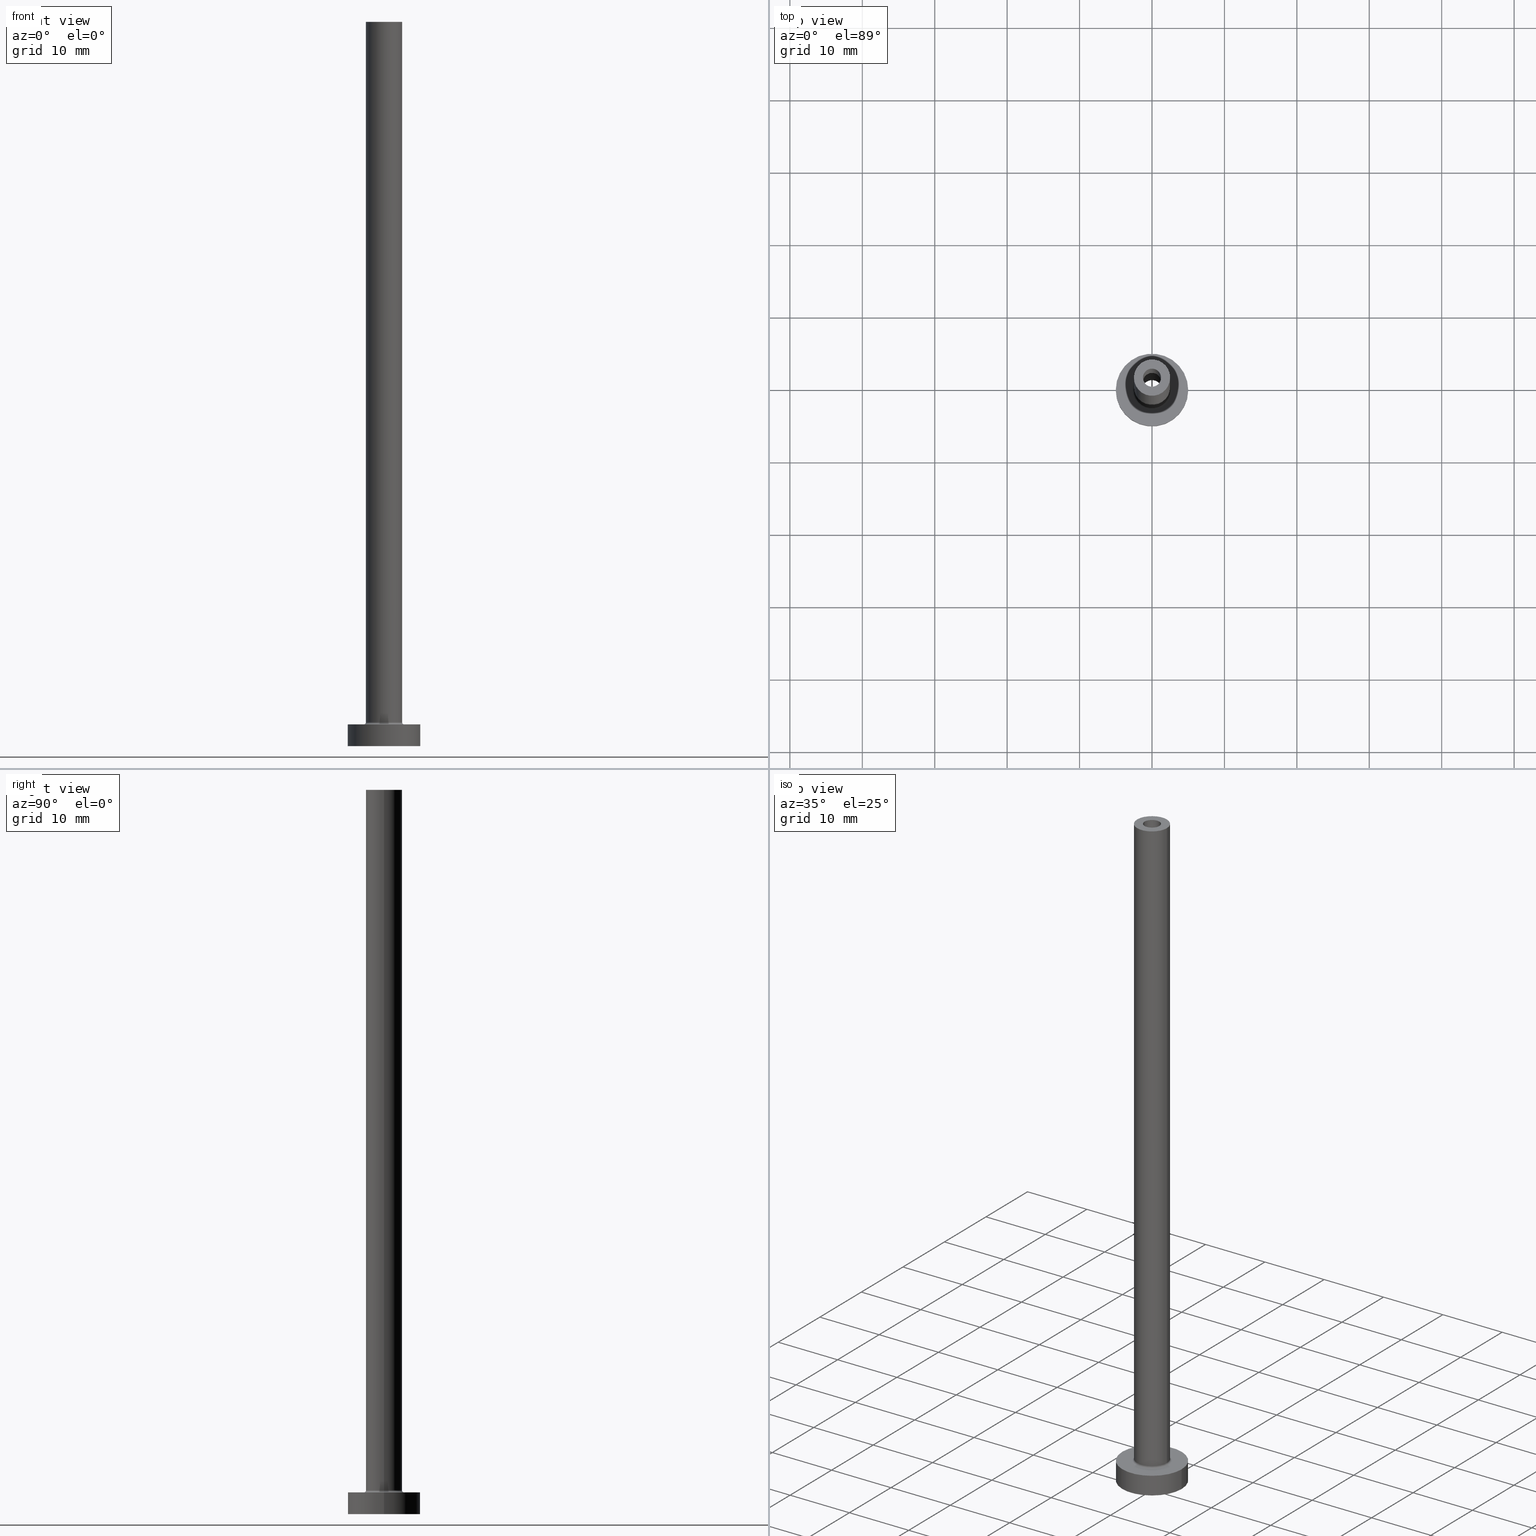
[diagram: canonical four-view strip — front | top / right | iso, engineering-drawing reading convention]
A machine part, canonical four-view strip (front | top / right | iso — engineering-drawing reading convention). The complete STEP part file that produces these views, byte-faithful:
ISO-10303-21;
HEADER;
FILE_DESCRIPTION (( 'STEP AP203' ),
    '1' );
FILE_NAME ('d042.STEP',
    '2023-02-13T12:49:09',
    ( '' ),
    ( '' ),
    'SwSTEP 2.0',
    'SolidWorks 2019',
    '' );
FILE_SCHEMA (( 'CONFIG_CONTROL_DESIGN' ));
ENDSEC;

DATA;
#1 = DIRECTION ( 'NONE',  ( 0.000000000000000000, 0.000000000000000000, 1.000000000000000000 ) ) ;
#2 = CARTESIAN_POINT ( 'NONE',  ( 0.000000000000000000, 0.000000000000000000, 100.0000000000000000 ) ) ;
#3 = AXIS2_PLACEMENT_3D ( 'NONE', #423, #246, #111 ) ;
#4 = DIRECTION ( 'NONE',  ( 0.000000000000000000, 0.000000000000000000, -1.000000000000000000 ) ) ;
#5 = FACE_OUTER_BOUND ( 'NONE', #127, .T. ) ;
#6 = CARTESIAN_POINT ( 'NONE',  ( 5.000000000000000000, 6.123233995736766282E-16, 0.000000000000000000 ) ) ;
#7 = VERTEX_POINT ( 'NONE', #173 ) ;
#8 = CARTESIAN_POINT ( 'NONE',  ( -2.799999999999999822, 3.429011037612588783E-16, 3.299999999999997158 ) ) ;
#9 = ORIENTED_EDGE ( 'NONE', *, *, #193, .F. ) ;
#10 = LINE ( 'NONE', #124, #236 ) ;
#11 = ORIENTED_EDGE ( 'NONE', *, *, #209, .T. ) ;
#12 = CARTESIAN_POINT ( 'NONE',  ( 0.000000000000000000, 0.000000000000000000, 100.0000000000000000 ) ) ;
#13 = ORIENTED_EDGE ( 'NONE', *, *, #340, .T. ) ;
#14 = APPROVAL_DATE_TIME ( #343, #264 ) ;
#15 = VERTEX_POINT ( 'NONE', #344 ) ;
#16 = AXIS2_PLACEMENT_3D ( 'NONE', #95, #144, #136 ) ;
#17 = CIRCLE ( 'NONE', #331, 2.799999999999999822 ) ;
#18 = DIRECTION ( 'NONE',  ( 0.000000000000000000, 0.000000000000000000, 1.000000000000000000 ) ) ;
#19 = PERSON_AND_ORGANIZATION_ROLE ( 'creator' ) ;
#20 = EDGE_CURVE ( 'NONE', #444, #78, #166, .T. ) ;
#21 = LINE ( 'NONE', #350, #221 ) ;
#22 = PERSON ( 'NEUR�EN�', 'NEUR�EN�', 'NEUR�EN�', ('NEUR�EN�'), ('NEUR�EN�'), ('NEUR�EN�') ) ;
#23 = MECHANICAL_CONTEXT ( 'NONE', #321, 'mechanical' ) ;
#24 = DIRECTION ( 'NONE',  ( -1.000000000000000000, 0.000000000000000000, 0.000000000000000000 ) ) ;
#25 = SECURITY_CLASSIFICATION_LEVEL ( 'unclassified' ) ;
#26 = VERTEX_POINT ( 'NONE', #64 ) ;
#27 = ADVANCED_FACE ( 'NONE', ( #210 ), #447, .F. ) ;
#28 = MANIFOLD_SOLID_BREP ( 'Odebrat vysunut�m4', #139 ) ;
#29 = DIRECTION ( 'NONE',  ( 1.000000000000000000, 0.000000000000000000, 0.000000000000000000 ) ) ;
#30 = DIRECTION ( 'NONE',  ( 1.000000000000000000, 0.000000000000000000, 0.000000000000000000 ) ) ;
#31 = AXIS2_PLACEMENT_3D ( 'NONE', #455, #383, #242 ) ;
#32 = AXIS2_PLACEMENT_3D ( 'NONE', #457, #247, #215 ) ;
#33 = DIRECTION ( 'NONE',  ( 0.000000000000000000, 0.000000000000000000, -1.000000000000000000 ) ) ;
#34 = AXIS2_PLACEMENT_3D ( 'NONE', #81, #413, #169 ) ;
#35 = CC_DESIGN_APPROVAL ( #264, ( #74 ) ) ;
#36 = DIRECTION ( 'NONE',  ( 0.000000000000000000, 0.000000000000000000, 1.000000000000000000 ) ) ;
#37 = EDGE_CURVE ( 'NONE', #26, #366, #21, .T. ) ;
#38 = CARTESIAN_POINT ( 'NONE',  ( 0.000000000000000000, 0.000000000000000000, 100.0000000000000000 ) ) ;
#39 = AXIS2_PLACEMENT_3D ( 'NONE', #416, #347, #29 ) ;
#40 = AXIS2_PLACEMENT_3D ( 'NONE', #38, #188, #77 ) ;
#41 = FACE_OUTER_BOUND ( 'NONE', #411, .T. ) ;
#42 = TOROIDAL_SURFACE ( 'NONE', #34, 2.799999999999999822, 0.2999999999999999889 ) ;
#43 = CC_DESIGN_PERSON_AND_ORGANIZATION_ASSIGNMENT ( #374, #19, ( #74 ) ) ;
#44 = DIRECTION ( 'NONE',  ( 0.000000000000000000, 0.000000000000000000, 1.000000000000000000 ) ) ;
#45 = ORIENTED_EDGE ( 'NONE', *, *, #79, .T. ) ;
#46 = CARTESIAN_POINT ( 'NONE',  ( 0.000000000000000000, 0.000000000000000000, 0.000000000000000000 ) ) ;
#47 = VERTEX_POINT ( 'NONE', #108 ) ;
#48 = LINE ( 'NONE', #84, #279 ) ;
#49 = CIRCLE ( 'NONE', #39, 5.000000000000000000 ) ;
#50 = AXIS2_PLACEMENT_3D ( 'NONE', #220, #359, #109 ) ;
#51 = ORIENTED_EDGE ( 'NONE', *, *, #424, .T. ) ;
#52 = DIRECTION ( 'NONE',  ( 1.000000000000000000, 0.000000000000000000, 0.000000000000000000 ) ) ;
#53 = ORIENTED_EDGE ( 'NONE', *, *, #193, .T. ) ;
#54 = EDGE_CURVE ( 'NONE', #440, #26, #49, .T. ) ;
#55 = CALENDAR_DATE ( 2023, 13, 2 ) ;
#56 = EDGE_LOOP ( 'NONE', ( #11, #197 ) ) ;
#57 = APPLICATION_PROTOCOL_DEFINITION ( 'international standard', 'config_control_design', 1994, #360 ) ;
#58 = FACE_OUTER_BOUND ( 'NONE', #267, .T. ) ;
#59 = AXIS2_PLACEMENT_3D ( 'NONE', #196, #332, #329 ) ;
#60 = EDGE_CURVE ( 'NONE', #369, #226, #324, .T. ) ;
#61 = PERSON_AND_ORGANIZATION_ROLE ( 'design_owner' ) ;
#62 = AXIS2_PLACEMENT_3D ( 'NONE', #443, #161, #52 ) ;
#63 = EDGE_LOOP ( 'NONE', ( #87, #400 ) ) ;
#64 = CARTESIAN_POINT ( 'NONE',  ( 5.000000000000000000, 6.123233995736766282E-16, 3.000000000000000000 ) ) ;
#65 = APPROVAL_ROLE ( '' ) ;
#66 = CARTESIAN_POINT ( 'NONE',  ( 0.000000000000000000, 0.000000000000000000, 100.0000000000000000 ) ) ;
#67 = CC_DESIGN_PERSON_AND_ORGANIZATION_ASSIGNMENT ( #137, #271, ( #185 ) ) ;
#68 = DATE_AND_TIME ( #135, #123 ) ;
#69 = DIRECTION ( 'NONE',  ( -0.000000000000000000, -0.000000000000000000, -1.000000000000000000 ) ) ;
#70 = PLANE ( 'NONE',  #354 ) ;
#71 = FACE_OUTER_BOUND ( 'NONE', #266, .T. ) ;
#72 = AXIS2_PLACEMENT_3D ( 'NONE', #234, #240, #420 ) ;
#73 = APPROVAL_DATE_TIME ( #68, #362 ) ;
#74 = PRODUCT_DEFINITION ( 'NEZN�M�', '', #185, #402 ) ;
#75 = DIRECTION ( 'NONE',  ( 0.000000000000000000, -1.000000000000000000, 0.000000000000000000 ) ) ;
#76 = CARTESIAN_POINT ( 'NONE',  ( -2.799999999999999822, 3.429011037612589276E-16, 2.999999999999998668 ) ) ;
#77 = DIRECTION ( 'NONE',  ( 1.000000000000000000, 0.000000000000000000, 0.000000000000000000 ) ) ;
#78 = VERTEX_POINT ( 'NONE', #134 ) ;
#79 = EDGE_CURVE ( 'NONE', #440, #406, #105, .T. ) ;
#80 = AXIS2_PLACEMENT_3D ( 'NONE', #204, #451, #103 ) ;
#81 = CARTESIAN_POINT ( 'NONE',  ( 0.000000000000000000, 0.000000000000000000, 3.299999999999997158 ) ) ;
#82 = ORIENTED_EDGE ( 'NONE', *, *, #388, .T. ) ;
#83 = CIRCLE ( 'NONE', #205, 0.2999999999999999334 ) ;
#84 = CARTESIAN_POINT ( 'NONE',  ( -2.500000000000000000, 0.000000000000000000, 100.0000000000000000 ) ) ;
#85 = ORIENTED_EDGE ( 'NONE', *, *, #37, .T. ) ;
#86 = CARTESIAN_POINT ( 'NONE',  ( 0.000000000000000000, 0.000000000000000000, 3.000000000000000000 ) ) ;
#87 = ORIENTED_EDGE ( 'NONE', *, *, #282, .F. ) ;
#88 = ADVANCED_BREP_SHAPE_REPRESENTATION ( 'd042', ( #28, #386 ), #295 ) ;
#89 = EDGE_CURVE ( 'NONE', #263, #131, #291, .T. ) ;
#90 = DIRECTION ( 'NONE',  ( 0.000000000000000000, 0.000000000000000000, 1.000000000000000000 ) ) ;
#91 = ORIENTED_EDGE ( 'NONE', *, *, #287, .F. ) ;
#92 = DIRECTION ( 'NONE',  ( -1.000000000000000000, 1.224646799147353207E-16, 0.000000000000000000 ) ) ;
#93 = VERTEX_POINT ( 'NONE', #376 ) ;
#94 =( NAMED_UNIT ( * ) PLANE_ANGLE_UNIT ( ) SI_UNIT ( $, .RADIAN. ) );
#95 = CARTESIAN_POINT ( 'NONE',  ( 0.000000000000000000, 0.000000000000000000, 3.000000000000000000 ) ) ;
#96 = ADVANCED_FACE ( 'NONE', ( #381 ), #379, .T. ) ;
#97 = DIRECTION ( 'NONE',  ( -1.000000000000000000, 0.000000000000000000, 0.000000000000000000 ) ) ;
#98 = CIRCLE ( 'NONE', #339, 1.399999999999999911 ) ;
#99 = AXIS2_PLACEMENT_3D ( 'NONE', #217, #251, #30 ) ;
#100 = CC_DESIGN_PERSON_AND_ORGANIZATION_ASSIGNMENT ( #415, #177, ( #286 ) ) ;
#101 = CALENDAR_DATE ( 2023, 13, 2 ) ;
#102 = ORGANIZATION ( 'NEUR�EN�', 'NEUR�EN�', '' ) ;
#103 = DIRECTION ( 'NONE',  ( -1.000000000000000000, 0.000000000000000000, 0.000000000000000000 ) ) ;
#104 = COORDINATED_UNIVERSAL_TIME_OFFSET ( 1, 0, .AHEAD. ) ;
#105 = LINE ( 'NONE', #308, #346 ) ;
#106 = PERSON_AND_ORGANIZATION ( #22, #102 ) ;
#107 = ADVANCED_FACE ( 'NONE', ( #58 ), #303, .F. ) ;
#108 = CARTESIAN_POINT ( 'NONE',  ( 2.500000000000000000, 3.061616997868382648E-16, 3.299999999999997158 ) ) ;
#109 = DIRECTION ( 'NONE',  ( 1.000000000000000000, 0.000000000000000000, 0.000000000000000000 ) ) ;
#110 = VERTEX_POINT ( 'NONE', #213 ) ;
#111 = DIRECTION ( 'NONE',  ( 1.000000000000000000, 0.000000000000000000, 0.000000000000000000 ) ) ;
#112 = ORIENTED_EDGE ( 'NONE', *, *, #142, .F. ) ;
#113 = EDGE_CURVE ( 'NONE', #7, #93, #98, .T. ) ;
#114 = DIRECTION ( 'NONE',  ( 0.000000000000000000, 0.000000000000000000, 1.000000000000000000 ) ) ;
#115 = CIRCLE ( 'NONE', #370, 0.2999999999999999334 ) ;
#116 = DIRECTION ( 'NONE',  ( 1.000000000000000000, 0.000000000000000000, 0.000000000000000000 ) ) ;
#117 = ADVANCED_FACE ( 'NONE', ( #306 ), #449, .T. ) ;
#118 = CARTESIAN_POINT ( 'NONE',  ( 0.000000000000000000, 0.000000000000000000, 100.0000000000000000 ) ) ;
#119 = ORIENTED_EDGE ( 'NONE', *, *, #395, .T. ) ;
#120 = CARTESIAN_POINT ( 'NONE',  ( 2.500000000000000000, 3.061616997868382648E-16, 100.0000000000000000 ) ) ;
#121 = VERTEX_POINT ( 'NONE', #357 ) ;
#122 = AXIS2_PLACEMENT_3D ( 'NONE', #405, #90, #299 ) ;
#123 = LOCAL_TIME ( 13, 49, 9.000000000000000000, #341 ) ;
#124 = CARTESIAN_POINT ( 'NONE',  ( -1.399999999999999911, 0.000000000000000000, 68.95979797464465832 ) ) ;
#125 = EDGE_LOOP ( 'NONE', ( #208, #182, #273, #168 ) ) ;
#126 = DIRECTION ( 'NONE',  ( 0.000000000000000000, 0.000000000000000000, 1.000000000000000000 ) ) ;
#127 = EDGE_LOOP ( 'NONE', ( #328, #53 ) ) ;
#128 = UNCERTAINTY_MEASURE_WITH_UNIT (LENGTH_MEASURE( 1.000000000000000082E-05 ), #452, 'distance_accuracy_value', 'NONE');
#129 = DIRECTION ( 'NONE',  ( 1.000000000000000000, 0.000000000000000000, 0.000000000000000000 ) ) ;
#130 = AXIS2_PLACEMENT_3D ( 'NONE', #432, #248, #316 ) ;
#131 = VERTEX_POINT ( 'NONE', #459 ) ;
#132 = APPROVAL_ROLE ( '' ) ;
#133 = ADVANCED_FACE ( 'NONE', ( #323 ), #153, .F. ) ;
#134 = CARTESIAN_POINT ( 'NONE',  ( -1.250000000000000000, 0.000000000000000000, 65.00000000000000000 ) ) ;
#135 = CALENDAR_DATE ( 2023, 13, 2 ) ;
#136 = DIRECTION ( 'NONE',  ( 1.000000000000000000, 0.000000000000000000, 0.000000000000000000 ) ) ;
#137 = PERSON_AND_ORGANIZATION ( #22, #102 ) ;
#138 = ORIENTED_EDGE ( 'NONE', *, *, #410, .F. ) ;
#139 = CLOSED_SHELL ( 'NONE', ( #107, #27, #456, #401, #96, #117, #320, #348, #214, #147, #249, #334, #305, #133 ) ) ;
#140 = AXIS2_PLACEMENT_3D ( 'NONE', #351, #114, #116 ) ;
#141 = ORIENTED_EDGE ( 'NONE', *, *, #358, .T. ) ;
#142 = EDGE_CURVE ( 'NONE', #47, #131, #115, .T. ) ;
#143 = COORDINATED_UNIVERSAL_TIME_OFFSET ( 1, 0, .AHEAD. ) ;
#144 = DIRECTION ( 'NONE',  ( -0.000000000000000000, -0.000000000000000000, -1.000000000000000000 ) ) ;
#145 = CARTESIAN_POINT ( 'NONE',  ( 0.000000000000000000, 0.000000000000000000, 100.0000000000000000 ) ) ;
#146 = CYLINDRICAL_SURFACE ( 'NONE', #458, 2.500000000000000000 ) ;
#147 = ADVANCED_FACE ( 'NONE', ( #218, #389 ), #70, .T. ) ;
#148 = APPROVAL_PERSON_ORGANIZATION ( #382, #176, #65 ) ;
#149 = ORIENTED_EDGE ( 'NONE', *, *, #238, .F. ) ;
#150 = DIRECTION ( 'NONE',  ( 1.000000000000000000, 0.000000000000000000, -0.000000000000000000 ) ) ;
#151 = PRODUCT_RELATED_PRODUCT_CATEGORY ( 'detail', '', ( #186 ) ) ;
#152 = DIRECTION ( 'NONE',  ( -0.000000000000000000, -0.000000000000000000, -1.000000000000000000 ) ) ;
#153 = CYLINDRICAL_SURFACE ( 'NONE', #309, 1.250000000000000000 ) ;
#154 = AXIS2_PLACEMENT_3D ( 'NONE', #296, #126, #262 ) ;
#155 = DIRECTION ( 'NONE',  ( 1.000000000000000000, 0.000000000000000000, -0.000000000000000000 ) ) ;
#156 = LINE ( 'NONE', #120, #292 ) ;
#157 = ORIENTED_EDGE ( 'NONE', *, *, #395, .F. ) ;
#158 = DIRECTION ( 'NONE',  ( 1.224646799147353207E-16, 1.000000000000000000, -0.000000000000000000 ) ) ;
#159 = ORIENTED_EDGE ( 'NONE', *, *, #410, .T. ) ;
#160 = EDGE_CURVE ( 'NONE', #406, #366, #183, .T. ) ;
#161 = DIRECTION ( 'NONE',  ( 0.000000000000000000, 0.000000000000000000, 1.000000000000000000 ) ) ;
#162 = ORIENTED_EDGE ( 'NONE', *, *, #60, .T. ) ;
#163 = DIRECTION ( 'NONE',  ( -1.000000000000000000, 0.000000000000000000, 0.000000000000000000 ) ) ;
#164 = EDGE_LOOP ( 'NONE', ( #231, #141, #51, #442 ) ) ;
#165 = EDGE_CURVE ( 'NONE', #226, #78, #355, .T. ) ;
#166 = CIRCLE ( 'NONE', #72, 1.250000000000000000 ) ;
#167 = DATE_TIME_ROLE ( 'classification_date' ) ;
#168 = ORIENTED_EDGE ( 'NONE', *, *, #89, .F. ) ;
#169 = DIRECTION ( 'NONE',  ( 1.000000000000000000, 0.000000000000000000, 0.000000000000000000 ) ) ;
#170 = DIRECTION ( 'NONE',  ( 1.000000000000000000, 0.000000000000000000, 0.000000000000000000 ) ) ;
#171 = COORDINATED_UNIVERSAL_TIME_OFFSET ( 1, 0, .AHEAD. ) ;
#172 = DIRECTION ( 'NONE',  ( 0.000000000000000000, 0.000000000000000000, 1.000000000000000000 ) ) ;
#173 = CARTESIAN_POINT ( 'NONE',  ( -1.399999999999999911, 0.000000000000000000, 65.00000000000000000 ) ) ;
#174 = AXIS2_PLACEMENT_3D ( 'NONE', #319, #1, #181 ) ;
#175 = CIRCLE ( 'NONE', #99, 2.500000000000000000 ) ;
#176 = APPROVAL ( #201, 'NEUR�EN�' ) ;
#177 = PERSON_AND_ORGANIZATION_ROLE ( 'classification_officer' ) ;
#178 = CC_DESIGN_SECURITY_CLASSIFICATION ( #286, ( #185 ) ) ;
#179 = EDGE_LOOP ( 'NONE', ( #356, #310 ) ) ;
#180 = FACE_OUTER_BOUND ( 'NONE', #375, .T. ) ;
#181 = DIRECTION ( 'NONE',  ( 1.000000000000000000, 0.000000000000000000, 0.000000000000000000 ) ) ;
#182 = ORIENTED_EDGE ( 'NONE', *, *, #424, .F. ) ;
#183 = CIRCLE ( 'NONE', #3, 5.000000000000000000 ) ;
#184 = AXIS2_PLACEMENT_3D ( 'NONE', #433, #44, #129 ) ;
#185 = PRODUCT_DEFINITION_FORMATION_WITH_SPECIFIED_SOURCE ( 'LIBOVOLN�', '', #186, .NOT_KNOWN. ) ;
#186 = PRODUCT ( 'd042', 'd042', '', ( #23 ) ) ;
#187 = SHAPE_DEFINITION_REPRESENTATION ( #312, #88 ) ;
#188 = DIRECTION ( 'NONE',  ( 0.000000000000000000, 0.000000000000000000, 1.000000000000000000 ) ) ;
#189 = CARTESIAN_POINT ( 'NONE',  ( 1.250000000000000000, 1.530808498934191571E-16, 65.00000000000000000 ) ) ;
#190 = LOCAL_TIME ( 13, 49, 9.000000000000000000, #171 ) ;
#191 = FACE_OUTER_BOUND ( 'NONE', #259, .T. ) ;
#192 = ORIENTED_EDGE ( 'NONE', *, *, #54, .F. ) ;
#193 = EDGE_CURVE ( 'NONE', #26, #440, #272, .T. ) ;
#194 = DIRECTION ( 'NONE',  ( 0.000000000000000000, 0.000000000000000000, 1.000000000000000000 ) ) ;
#195 = VERTEX_POINT ( 'NONE', #322 ) ;
#196 = CARTESIAN_POINT ( 'NONE',  ( 0.000000000000000000, 0.000000000000000000, 0.000000000000000000 ) ) ;
#197 = ORIENTED_EDGE ( 'NONE', *, *, #244, .T. ) ;
#198 = CC_DESIGN_APPROVAL ( #176, ( #185 ) ) ;
#199 = PLANE ( 'NONE',  #436 ) ;
#200 = ORIENTED_EDGE ( 'NONE', *, *, #238, .T. ) ;
#201 = APPROVAL_STATUS ( 'not_yet_approved' ) ;
#202 = VERTEX_POINT ( 'NONE', #283 ) ;
#203 = APPROVAL_DATE_TIME ( #450, #176 ) ;
#204 = CARTESIAN_POINT ( 'NONE',  ( 0.000000000000000000, 0.000000000000000000, 100.0000000000000000 ) ) ;
#205 = AXIS2_PLACEMENT_3D ( 'NONE', #8, #158, #92 ) ;
#206 = APPROVAL_PERSON_ORGANIZATION ( #448, #362, #132 ) ;
#207 = APPROVAL_STATUS ( 'not_yet_approved' ) ;
#208 = ORIENTED_EDGE ( 'NONE', *, *, #367, .F. ) ;
#209 = EDGE_CURVE ( 'NONE', #121, #110, #284, .T. ) ;
#210 = FACE_OUTER_BOUND ( 'NONE', #212, .T. ) ;
#211 = COORDINATED_UNIVERSAL_TIME_OFFSET ( 1, 0, .AHEAD. ) ;
#212 = EDGE_LOOP ( 'NONE', ( #437, #396, #254, #373 ) ) ;
#213 = CARTESIAN_POINT ( 'NONE',  ( 2.500000000000000000, 3.061616997868382648E-16, 100.0000000000000000 ) ) ;
#214 = ADVANCED_FACE ( 'NONE', ( #71 ), #146, .T. ) ;
#215 = DIRECTION ( 'NONE',  ( 1.000000000000000000, 0.000000000000000000, 0.000000000000000000 ) ) ;
#216 = EDGE_LOOP ( 'NONE', ( #336, #162, #330, #338 ) ) ;
#217 = CARTESIAN_POINT ( 'NONE',  ( 0.000000000000000000, 0.000000000000000000, 100.0000000000000000 ) ) ;
#218 = FACE_BOUND ( 'NONE', #63, .T. ) ;
#219 = CARTESIAN_POINT ( 'NONE',  ( 0.000000000000000000, 0.000000000000000000, 3.000000000000000000 ) ) ;
#220 = CARTESIAN_POINT ( 'NONE',  ( 0.000000000000000000, 0.000000000000000000, 3.000000000000000000 ) ) ;
#221 = VECTOR ( 'NONE', #412, 1000.000000000000000 ) ;
#222 = AXIS2_PLACEMENT_3D ( 'NONE', #86, #365, #155 ) ;
#223 = DIRECTION ( 'NONE',  ( 1.000000000000000000, 0.000000000000000000, -0.000000000000000000 ) ) ;
#224 = ORIENTED_EDGE ( 'NONE', *, *, #270, .F. ) ;
#225 = DIRECTION ( 'NONE',  ( 0.000000000000000000, 0.000000000000000000, 1.000000000000000000 ) ) ;
#226 = VERTEX_POINT ( 'NONE', #430 ) ;
#227 = CC_DESIGN_DATE_AND_TIME_ASSIGNMENT ( #304, #167, ( #286 ) ) ;
#228 = DIRECTION ( 'NONE',  ( -0.000000000000000000, -0.000000000000000000, -1.000000000000000000 ) ) ;
#229 = EDGE_LOOP ( 'NONE', ( #9, #85, #159, #256 ) ) ;
#230 = CARTESIAN_POINT ( 'NONE',  ( 0.000000000000000000, 0.000000000000000000, 65.00000000000000000 ) ) ;
#231 = ORIENTED_EDGE ( 'NONE', *, *, #244, .F. ) ;
#232 = CARTESIAN_POINT ( 'NONE',  ( -5.000000000000000000, 0.000000000000000000, 3.000000000000000000 ) ) ;
#233 = ORIENTED_EDGE ( 'NONE', *, *, #160, .T. ) ;
#234 = CARTESIAN_POINT ( 'NONE',  ( 0.000000000000000000, 0.000000000000000000, 65.00000000000000000 ) ) ;
#235 = CARTESIAN_POINT ( 'NONE',  ( 0.000000000000000000, 0.000000000000000000, 0.000000000000000000 ) ) ;
#236 = VECTOR ( 'NONE', #368, 1000.000000000000000 ) ;
#237 = DIRECTION ( 'NONE',  ( 1.000000000000000000, 0.000000000000000000, 0.000000000000000000 ) ) ;
#238 = EDGE_CURVE ( 'NONE', #78, #444, #422, .T. ) ;
#239 = APPROVAL_ROLE ( '' ) ;
#240 = DIRECTION ( 'NONE',  ( 0.000000000000000000, 0.000000000000000000, 1.000000000000000000 ) ) ;
#241 = DATE_AND_TIME ( #55, #190 ) ;
#242 = DIRECTION ( 'NONE',  ( -1.000000000000000000, 0.000000000000000000, 0.000000000000000000 ) ) ;
#243 = DIRECTION ( 'NONE',  ( -0.000000000000000000, -0.000000000000000000, -1.000000000000000000 ) ) ;
#244 = EDGE_CURVE ( 'NONE', #110, #121, #175, .T. ) ;
#245 = VECTOR ( 'NONE', #409, 1000.000000000000000 ) ;
#246 = DIRECTION ( 'NONE',  ( 0.000000000000000000, 0.000000000000000000, 1.000000000000000000 ) ) ;
#247 = DIRECTION ( 'NONE',  ( 0.000000000000000000, 0.000000000000000000, 1.000000000000000000 ) ) ;
#248 = DIRECTION ( 'NONE',  ( -0.000000000000000000, -0.000000000000000000, -1.000000000000000000 ) ) ;
#249 = ADVANCED_FACE ( 'NONE', ( #353 ), #371, .F. ) ;
#250 = CIRCLE ( 'NONE', #154, 1.399999999999999911 ) ;
#251 = DIRECTION ( 'NONE',  ( 0.000000000000000000, 0.000000000000000000, 1.000000000000000000 ) ) ;
#252 = ORIENTED_EDGE ( 'NONE', *, *, #298, .F. ) ;
#253 = CARTESIAN_POINT ( 'NONE',  ( 1.399999999999999911, 1.714505518806294391E-16, 68.95979797464465832 ) ) ;
#254 = ORIENTED_EDGE ( 'NONE', *, *, #287, .T. ) ;
#255 = DIRECTION ( 'NONE',  ( -0.000000000000000000, -0.000000000000000000, -1.000000000000000000 ) ) ;
#256 = ORIENTED_EDGE ( 'NONE', *, *, #79, .F. ) ;
#257 = CC_DESIGN_DATE_AND_TIME_ASSIGNMENT ( #241, #307, ( #74 ) ) ;
#258 = CYLINDRICAL_SURFACE ( 'NONE', #318, 2.500000000000000000 ) ;
#259 = EDGE_LOOP ( 'NONE', ( #252, #119, #297, #13 ) ) ;
#260 = FACE_BOUND ( 'NONE', #179, .T. ) ;
#261 = ORIENTED_EDGE ( 'NONE', *, *, #438, .T. ) ;
#262 = DIRECTION ( 'NONE',  ( 1.000000000000000000, 0.000000000000000000, 0.000000000000000000 ) ) ;
#263 = VERTEX_POINT ( 'NONE', #76 ) ;
#264 = APPROVAL ( #207, 'NEUR�EN�' ) ;
#265 = CARTESIAN_POINT ( 'NONE',  ( 1.250000000000000000, 1.530808498934191571E-16, 100.0000000000000000 ) ) ;
#266 = EDGE_LOOP ( 'NONE', ( #390, #385, #276, #82 ) ) ;
#267 = EDGE_LOOP ( 'NONE', ( #434, #261, #149, #398 ) ) ;
#268 = CALENDAR_DATE ( 2023, 13, 2 ) ;
#269 = CARTESIAN_POINT ( 'NONE',  ( 0.000000000000000000, 0.000000000000000000, 3.000000000000000000 ) ) ;
#270 = EDGE_CURVE ( 'NONE', #131, #263, #17, .T. ) ;
#271 = PERSON_AND_ORGANIZATION_ROLE ( 'design_supplier' ) ;
#272 = CIRCLE ( 'NONE', #50, 5.000000000000000000 ) ;
#273 = ORIENTED_EDGE ( 'NONE', *, *, #142, .T. ) ;
#274 = ORIENTED_EDGE ( 'NONE', *, *, #113, .F. ) ;
#275 = CALENDAR_DATE ( 2023, 13, 2 ) ;
#276 = ORIENTED_EDGE ( 'NONE', *, *, #325, .T. ) ;
#277 = AXIS2_PLACEMENT_3D ( 'NONE', #269, #414, #97 ) ;
#278 = DIRECTION ( 'NONE',  ( 0.000000000000000000, 0.000000000000000000, -1.000000000000000000 ) ) ;
#279 = VECTOR ( 'NONE', #228, 1000.000000000000000 ) ;
#280 = FACE_BOUND ( 'NONE', #300, .T. ) ;
#281 = DIRECTION ( 'NONE',  ( -0.000000000000000000, -0.000000000000000000, -1.000000000000000000 ) ) ;
#282 = EDGE_CURVE ( 'NONE', #226, #369, #408, .T. ) ;
#283 = CARTESIAN_POINT ( 'NONE',  ( -2.500000000000000000, 0.000000000000000000, 3.299999999999997158 ) ) ;
#284 = CIRCLE ( 'NONE', #32, 2.500000000000000000 ) ;
#285 = DIRECTION ( 'NONE',  ( -1.000000000000000000, 0.000000000000000000, 0.000000000000000000 ) ) ;
#286 = SECURITY_CLASSIFICATION ( '', '', #25 ) ;
#287 = EDGE_CURVE ( 'NONE', #15, #195, #429, .T. ) ;
#288 = CARTESIAN_POINT ( 'NONE',  ( 1.250000000000000000, 1.530808498934191571E-16, 100.0000000000000000 ) ) ;
#289 = FACE_BOUND ( 'NONE', #364, .T. ) ;
#290 = ORIENTED_EDGE ( 'NONE', *, *, #20, .T. ) ;
#291 = CIRCLE ( 'NONE', #16, 2.799999999999999822 ) ;
#292 = VECTOR ( 'NONE', #255, 1000.000000000000000 ) ;
#293 = CARTESIAN_POINT ( 'NONE',  ( -5.000000000000000000, 0.000000000000000000, 0.000000000000000000 ) ) ;
#294 = ORIENTED_EDGE ( 'NONE', *, *, #340, .F. ) ;
#295 =( GEOMETRIC_REPRESENTATION_CONTEXT ( 3 ) GLOBAL_UNCERTAINTY_ASSIGNED_CONTEXT ( ( #128 ) ) GLOBAL_UNIT_ASSIGNED_CONTEXT ( ( #452, #94, #337 ) ) REPRESENTATION_CONTEXT ( 'NONE', 'WORKASPACE' ) );
#296 = CARTESIAN_POINT ( 'NONE',  ( 0.000000000000000000, 0.000000000000000000, 65.00000000000000000 ) ) ;
#297 = ORIENTED_EDGE ( 'NONE', *, *, #352, .T. ) ;
#298 = EDGE_CURVE ( 'NONE', #93, #15, #392, .T. ) ;
#299 = DIRECTION ( 'NONE',  ( 1.000000000000000000, 0.000000000000000000, 0.000000000000000000 ) ) ;
#300 = EDGE_LOOP ( 'NONE', ( #200, #290 ) ) ;
#301 = VECTOR ( 'NONE', #33, 1000.000000000000000 ) ;
#302 = DIRECTION ( 'NONE',  ( 0.000000000000000000, 0.000000000000000000, 1.000000000000000000 ) ) ;
#303 = CYLINDRICAL_SURFACE ( 'NONE', #80, 1.250000000000000000 ) ;
#304 = DATE_AND_TIME ( #275, #311 ) ;
#305 = ADVANCED_FACE ( 'NONE', ( #280, #180 ), #315, .F. ) ;
#306 = FACE_OUTER_BOUND ( 'NONE', #314, .T. ) ;
#307 = DATE_TIME_ROLE ( 'creation_date' ) ;
#308 = CARTESIAN_POINT ( 'NONE',  ( -5.000000000000000000, 0.000000000000000000, 3.000000000000000000 ) ) ;
#309 = AXIS2_PLACEMENT_3D ( 'NONE', #145, #4, #393 ) ;
#310 = ORIENTED_EDGE ( 'NONE', *, *, #89, .T. ) ;
#311 = LOCAL_TIME ( 13, 49, 9.000000000000000000, #143 ) ;
#312 = PRODUCT_DEFINITION_SHAPE ( 'NONE', 'NONE',  #74 ) ;
#313 = PERSON_AND_ORGANIZATION ( #22, #102 ) ;
#314 = EDGE_LOOP ( 'NONE', ( #460, #192, #45, #233 ) ) ;
#315 = PLANE ( 'NONE',  #361 ) ;
#316 = DIRECTION ( 'NONE',  ( 1.000000000000000000, 0.000000000000000000, 0.000000000000000000 ) ) ;
#317 = AXIS2_PLACEMENT_3D ( 'NONE', #399, #435, #372 ) ;
#318 = AXIS2_PLACEMENT_3D ( 'NONE', #12, #363, #163 ) ;
#319 = CARTESIAN_POINT ( 'NONE',  ( 0.000000000000000000, 0.000000000000000000, 3.299999999999997158 ) ) ;
#320 = ADVANCED_FACE ( 'NONE', ( #260, #5 ), #403, .T. ) ;
#321 = APPLICATION_CONTEXT ( 'configuration controlled 3d designs of mechanical parts and assemblies' ) ;
#322 = CARTESIAN_POINT ( 'NONE',  ( -1.399999999999999911, 0.000000000000000000, 0.000000000000000000 ) ) ;
#323 = FACE_OUTER_BOUND ( 'NONE', #216, .T. ) ;
#324 = CIRCLE ( 'NONE', #391, 1.250000000000000000 ) ;
#325 = EDGE_CURVE ( 'NONE', #121, #202, #48, .T. ) ;
#326 = CIRCLE ( 'NONE', #184, 2.500000000000000000 ) ;
#327 = FACE_OUTER_BOUND ( 'NONE', #421, .T. ) ;
#328 = ORIENTED_EDGE ( 'NONE', *, *, #54, .T. ) ;
#329 = DIRECTION ( 'NONE',  ( 1.000000000000000000, 0.000000000000000000, 0.000000000000000000 ) ) ;
#330 = ORIENTED_EDGE ( 'NONE', *, *, #165, .T. ) ;
#331 = AXIS2_PLACEMENT_3D ( 'NONE', #219, #281, #428 ) ;
#332 = DIRECTION ( 'NONE',  ( -0.000000000000000000, -0.000000000000000000, -1.000000000000000000 ) ) ;
#333 = ORIENTED_EDGE ( 'NONE', *, *, #388, .F. ) ;
#334 = ADVANCED_FACE ( 'NONE', ( #191 ), #441, .F. ) ;
#335 = FACE_OUTER_BOUND ( 'NONE', #164, .T. ) ;
#336 = ORIENTED_EDGE ( 'NONE', *, *, #438, .F. ) ;
#337 =( NAMED_UNIT ( * ) SI_UNIT ( $, .STERADIAN. ) SOLID_ANGLE_UNIT ( ) );
#338 = ORIENTED_EDGE ( 'NONE', *, *, #20, .F. ) ;
#339 = AXIS2_PLACEMENT_3D ( 'NONE', #342, #18, #170 ) ;
#340 = EDGE_CURVE ( 'NONE', #195, #15, #377, .T. ) ;
#341 = COORDINATED_UNIVERSAL_TIME_OFFSET ( 1, 0, .AHEAD. ) ;
#342 = CARTESIAN_POINT ( 'NONE',  ( 0.000000000000000000, 0.000000000000000000, 65.00000000000000000 ) ) ;
#343 = DATE_AND_TIME ( #268, #425 ) ;
#344 = CARTESIAN_POINT ( 'NONE',  ( 1.399999999999999911, 1.714505518806294391E-16, 0.000000000000000000 ) ) ;
#345 = CARTESIAN_POINT ( 'NONE',  ( 0.000000000000000000, 0.000000000000000000, 3.000000000000000000 ) ) ;
#346 = VECTOR ( 'NONE', #243, 1000.000000000000000 ) ;
#347 = DIRECTION ( 'NONE',  ( 0.000000000000000000, 0.000000000000000000, 1.000000000000000000 ) ) ;
#348 = ADVANCED_FACE ( 'NONE', ( #289, #327 ), #199, .F. ) ;
#349 = CIRCLE ( 'NONE', #62, 2.500000000000000000 ) ;
#350 = CARTESIAN_POINT ( 'NONE',  ( 5.000000000000000000, 6.123233995736766282E-16, 3.000000000000000000 ) ) ;
#351 = CARTESIAN_POINT ( 'NONE',  ( 0.000000000000000000, 0.000000000000000000, 65.00000000000000000 ) ) ;
#352 = EDGE_CURVE ( 'NONE', #7, #195, #10, .T. ) ;
#353 = FACE_OUTER_BOUND ( 'NONE', #125, .T. ) ;
#354 = AXIS2_PLACEMENT_3D ( 'NONE', #118, #36, #150 ) ;
#355 = LINE ( 'NONE', #387, #301 ) ;
#356 = ORIENTED_EDGE ( 'NONE', *, *, #270, .T. ) ;
#357 = CARTESIAN_POINT ( 'NONE',  ( -2.500000000000000000, 0.000000000000000000, 100.0000000000000000 ) ) ;
#358 = EDGE_CURVE ( 'NONE', #110, #47, #156, .T. ) ;
#359 = DIRECTION ( 'NONE',  ( 0.000000000000000000, 0.000000000000000000, 1.000000000000000000 ) ) ;
#360 = APPLICATION_CONTEXT ( 'configuration controlled 3d designs of mechanical parts and assemblies' ) ;
#361 = AXIS2_PLACEMENT_3D ( 'NONE', #230, #225, #223 ) ;
#362 = APPROVAL ( #445, 'NEUR�EN�' ) ;
#363 = DIRECTION ( 'NONE',  ( -0.000000000000000000, -0.000000000000000000, -1.000000000000000000 ) ) ;
#364 = EDGE_LOOP ( 'NONE', ( #294, #91 ) ) ;
#365 = DIRECTION ( 'NONE',  ( 0.000000000000000000, 0.000000000000000000, 1.000000000000000000 ) ) ;
#366 = VERTEX_POINT ( 'NONE', #6 ) ;
#367 = EDGE_CURVE ( 'NONE', #202, #263, #83, .T. ) ;
#368 = DIRECTION ( 'NONE',  ( 0.000000000000000000, 0.000000000000000000, -1.000000000000000000 ) ) ;
#369 = VERTEX_POINT ( 'NONE', #288 ) ;
#370 = AXIS2_PLACEMENT_3D ( 'NONE', #427, #75, #278 ) ;
#371 = TOROIDAL_SURFACE ( 'NONE', #174, 2.799999999999999822, 0.2999999999999999889 ) ;
#372 = DIRECTION ( 'NONE',  ( -1.000000000000000000, 0.000000000000000000, 0.000000000000000000 ) ) ;
#373 = ORIENTED_EDGE ( 'NONE', *, *, #352, .F. ) ;
#374 = PERSON_AND_ORGANIZATION ( #22, #102 ) ;
#375 = EDGE_LOOP ( 'NONE', ( #274, #157 ) ) ;
#376 = CARTESIAN_POINT ( 'NONE',  ( 1.399999999999999911, 1.714505518806294391E-16, 65.00000000000000000 ) ) ;
#377 = CIRCLE ( 'NONE', #59, 1.399999999999999911 ) ;
#378 = APPLICATION_PROTOCOL_DEFINITION ( 'international standard', 'config_control_design', 1994, #321 ) ;
#379 = CYLINDRICAL_SURFACE ( 'NONE', #407, 5.000000000000000000 ) ;
#380 = DIRECTION ( 'NONE',  ( 1.000000000000000000, 0.000000000000000000, 0.000000000000000000 ) ) ;
#381 = FACE_OUTER_BOUND ( 'NONE', #229, .T. ) ;
#382 = PERSON_AND_ORGANIZATION ( #22, #102 ) ;
#383 = DIRECTION ( 'NONE',  ( 0.000000000000000000, 0.000000000000000000, -1.000000000000000000 ) ) ;
#384 = VECTOR ( 'NONE', #394, 1000.000000000000000 ) ;
#385 = ORIENTED_EDGE ( 'NONE', *, *, #209, .F. ) ;
#386 = AXIS2_PLACEMENT_3D ( 'NONE', #235, #302, #380 ) ;
#387 = CARTESIAN_POINT ( 'NONE',  ( -1.250000000000000000, 0.000000000000000000, 100.0000000000000000 ) ) ;
#388 = EDGE_CURVE ( 'NONE', #202, #47, #349, .T. ) ;
#389 = FACE_OUTER_BOUND ( 'NONE', #56, .T. ) ;
#390 = ORIENTED_EDGE ( 'NONE', *, *, #358, .F. ) ;
#391 = AXIS2_PLACEMENT_3D ( 'NONE', #66, #172, #237 ) ;
#392 = LINE ( 'NONE', #253, #384 ) ;
#393 = DIRECTION ( 'NONE',  ( -1.000000000000000000, 0.000000000000000000, 0.000000000000000000 ) ) ;
#394 = DIRECTION ( 'NONE',  ( 0.000000000000000000, 0.000000000000000000, -1.000000000000000000 ) ) ;
#395 = EDGE_CURVE ( 'NONE', #93, #7, #250, .T. ) ;
#396 = ORIENTED_EDGE ( 'NONE', *, *, #298, .T. ) ;
#397 = DIRECTION ( 'NONE',  ( 1.000000000000000000, 0.000000000000000000, -0.000000000000000000 ) ) ;
#398 = ORIENTED_EDGE ( 'NONE', *, *, #165, .F. ) ;
#399 = CARTESIAN_POINT ( 'NONE',  ( 0.000000000000000000, 0.000000000000000000, 68.95979797464465832 ) ) ;
#400 = ORIENTED_EDGE ( 'NONE', *, *, #60, .F. ) ;
#401 = ADVANCED_FACE ( 'NONE', ( #335 ), #258, .T. ) ;
#402 = DESIGN_CONTEXT ( 'detailed design', #360, 'design' ) ;
#403 = PLANE ( 'NONE',  #222 ) ;
#404 = ORIENTED_EDGE ( 'NONE', *, *, #367, .T. ) ;
#405 = CARTESIAN_POINT ( 'NONE',  ( 0.000000000000000000, 0.000000000000000000, 0.000000000000000000 ) ) ;
#406 = VERTEX_POINT ( 'NONE', #293 ) ;
#407 = AXIS2_PLACEMENT_3D ( 'NONE', #345, #69, #24 ) ;
#408 = CIRCLE ( 'NONE', #40, 1.250000000000000000 ) ;
#409 = DIRECTION ( 'NONE',  ( 0.000000000000000000, 0.000000000000000000, -1.000000000000000000 ) ) ;
#410 = EDGE_CURVE ( 'NONE', #366, #406, #461, .T. ) ;
#411 = EDGE_LOOP ( 'NONE', ( #333, #404, #224, #112 ) ) ;
#412 = DIRECTION ( 'NONE',  ( -0.000000000000000000, -0.000000000000000000, -1.000000000000000000 ) ) ;
#413 = DIRECTION ( 'NONE',  ( 0.000000000000000000, 0.000000000000000000, 1.000000000000000000 ) ) ;
#414 = DIRECTION ( 'NONE',  ( -0.000000000000000000, -0.000000000000000000, -1.000000000000000000 ) ) ;
#415 = PERSON_AND_ORGANIZATION ( #22, #102 ) ;
#416 = CARTESIAN_POINT ( 'NONE',  ( 0.000000000000000000, 0.000000000000000000, 3.000000000000000000 ) ) ;
#417 = LOCAL_TIME ( 13, 49, 9.000000000000000000, #211 ) ;
#418 = CC_DESIGN_PERSON_AND_ORGANIZATION_ASSIGNMENT ( #313, #454, ( #185 ) ) ;
#419 = PERSON_AND_ORGANIZATION ( #22, #102 ) ;
#420 = DIRECTION ( 'NONE',  ( 1.000000000000000000, 0.000000000000000000, 0.000000000000000000 ) ) ;
#421 = EDGE_LOOP ( 'NONE', ( #453, #138 ) ) ;
#422 = CIRCLE ( 'NONE', #140, 1.250000000000000000 ) ;
#423 = CARTESIAN_POINT ( 'NONE',  ( 0.000000000000000000, 0.000000000000000000, 0.000000000000000000 ) ) ;
#424 = EDGE_CURVE ( 'NONE', #47, #202, #326, .T. ) ;
#425 = LOCAL_TIME ( 13, 49, 9.000000000000000000, #104 ) ;
#426 = CC_DESIGN_APPROVAL ( #362, ( #286 ) ) ;
#427 = CARTESIAN_POINT ( 'NONE',  ( 2.799999999999999822, 0.000000000000000000, 3.299999999999997158 ) ) ;
#428 = DIRECTION ( 'NONE',  ( 1.000000000000000000, 0.000000000000000000, 0.000000000000000000 ) ) ;
#429 = CIRCLE ( 'NONE', #130, 1.399999999999999911 ) ;
#430 = CARTESIAN_POINT ( 'NONE',  ( -1.250000000000000000, 0.000000000000000000, 100.0000000000000000 ) ) ;
#431 = CC_DESIGN_PERSON_AND_ORGANIZATION_ASSIGNMENT ( #419, #61, ( #186 ) ) ;
#432 = CARTESIAN_POINT ( 'NONE',  ( 0.000000000000000000, 0.000000000000000000, 0.000000000000000000 ) ) ;
#433 = CARTESIAN_POINT ( 'NONE',  ( 0.000000000000000000, 0.000000000000000000, 3.299999999999997158 ) ) ;
#434 = ORIENTED_EDGE ( 'NONE', *, *, #282, .T. ) ;
#435 = DIRECTION ( 'NONE',  ( 0.000000000000000000, 0.000000000000000000, -1.000000000000000000 ) ) ;
#436 = AXIS2_PLACEMENT_3D ( 'NONE', #46, #194, #397 ) ;
#437 = ORIENTED_EDGE ( 'NONE', *, *, #113, .T. ) ;
#438 = EDGE_CURVE ( 'NONE', #369, #444, #439, .T. ) ;
#439 = LINE ( 'NONE', #265, #245 ) ;
#440 = VERTEX_POINT ( 'NONE', #232 ) ;
#441 = CYLINDRICAL_SURFACE ( 'NONE', #317, 1.399999999999999911 ) ;
#442 = ORIENTED_EDGE ( 'NONE', *, *, #325, .F. ) ;
#443 = CARTESIAN_POINT ( 'NONE',  ( 0.000000000000000000, 0.000000000000000000, 3.299999999999997158 ) ) ;
#444 = VERTEX_POINT ( 'NONE', #189 ) ;
#445 = APPROVAL_STATUS ( 'not_yet_approved' ) ;
#446 = APPROVAL_PERSON_ORGANIZATION ( #106, #264, #239 ) ;
#447 = CYLINDRICAL_SURFACE ( 'NONE', #31, 1.399999999999999911 ) ;
#448 = PERSON_AND_ORGANIZATION ( #22, #102 ) ;
#449 = CYLINDRICAL_SURFACE ( 'NONE', #277, 5.000000000000000000 ) ;
#450 = DATE_AND_TIME ( #101, #417 ) ;
#451 = DIRECTION ( 'NONE',  ( 0.000000000000000000, 0.000000000000000000, -1.000000000000000000 ) ) ;
#452 =( LENGTH_UNIT ( ) NAMED_UNIT ( * ) SI_UNIT ( .MILLI., .METRE. ) );
#453 = ORIENTED_EDGE ( 'NONE', *, *, #160, .F. ) ;
#454 = PERSON_AND_ORGANIZATION_ROLE ( 'creator' ) ;
#455 = CARTESIAN_POINT ( 'NONE',  ( 0.000000000000000000, 0.000000000000000000, 68.95979797464465832 ) ) ;
#456 = ADVANCED_FACE ( 'NONE', ( #41 ), #42, .F. ) ;
#457 = CARTESIAN_POINT ( 'NONE',  ( 0.000000000000000000, 0.000000000000000000, 100.0000000000000000 ) ) ;
#458 = AXIS2_PLACEMENT_3D ( 'NONE', #2, #152, #285 ) ;
#459 = CARTESIAN_POINT ( 'NONE',  ( 2.799999999999999822, 0.000000000000000000, 2.999999999999998668 ) ) ;
#460 = ORIENTED_EDGE ( 'NONE', *, *, #37, .F. ) ;
#461 = CIRCLE ( 'NONE', #122, 5.000000000000000000 ) ;
ENDSEC;
END-ISO-10303-21;
